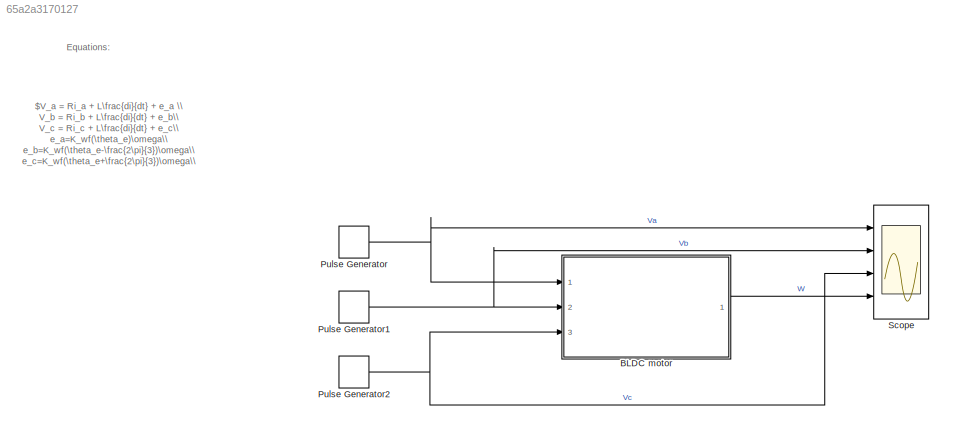
MODEL slx_65a2a3170127
KIND model
CONFIG AbsTol = auto
CONFIG EnableMultiTasking = off
CONFIG FixedStep = auto
CONFIG MaxStep = 0.01
CONFIG MinStep = auto
CONFIG RelTol = 1e-3
CONFIG SampleTimeConstraint = Unconstrained
CONFIG SolverName = ode45
CONFIG StartTime = 0.0
CONFIG StopTime = 50
WORKSPACE source: mxarray member
WORKSPACE B: Simulink.Parameter (value not decoded)
WORKSPACE J: Simulink.Parameter (value not decoded)
WORKSPACE Kw: Simulink.Parameter (value not decoded)
WORKSPACE L: Simulink.Parameter (value not decoded)
WORKSPACE P: Simulink.Parameter (value not decoded)
WORKSPACE R: Simulink.Parameter (value not decoded)
WORKSPACE Tl: Simulink.Parameter (value not decoded)
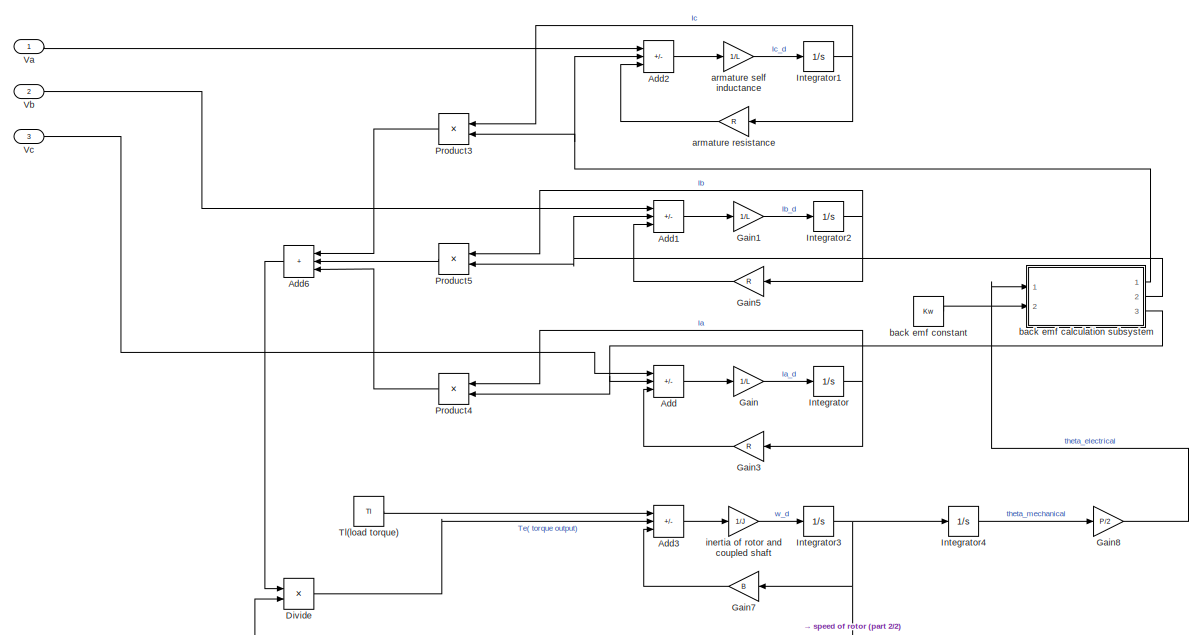
[diagram: BLDC motor - part 1/2, most of the canvas]
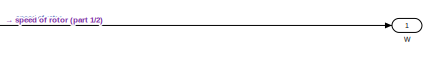
[diagram: BLDC motor - part 2/2, bottom right region]
BLOCK [SubSystem] BLDC motor
  Ports = [3, 1]
  RequestExecContextInheritance = off
BLOCK [Sum] BLDC motor/Add
  IconShape = rectangular
  Inputs = +--
  Ports = [3, 1]
BLOCK [Sum] BLDC motor/Add1
  IconShape = rectangular
  Inputs = +--
  Ports = [3, 1]
BLOCK [Sum] BLDC motor/Add2
  IconShape = rectangular
  Inputs = +--
  Ports = [3, 1]
BLOCK [Sum] BLDC motor/Add3
  IconShape = rectangular
  Inputs = -+-
  Ports = [3, 1]
BLOCK [Sum] BLDC motor/Add6
  IconShape = rectangular
  Inputs = +++
  NameLocation = top
  Ports = [3, 1]
BLOCK [Product] BLDC motor/Divide
  Inputs = */
  Ports = [2, 1]
BLOCK [Gain] BLDC motor/Gain
  Gain = 1/L
BLOCK [Gain] BLDC motor/Gain1
  Gain = 1/L
BLOCK [Gain] BLDC motor/Gain3
  Gain = R
  NameLocation = top
BLOCK [Gain] BLDC motor/Gain5
  Gain = R
  NameLocation = top
BLOCK [Gain] BLDC motor/Gain7
  Gain = B
  NameLocation = top
BLOCK [Gain] BLDC motor/Gain8
  Gain = P/2
BLOCK [Integrator] BLDC motor/Integrator
  Ports = [1, 1]
BLOCK [Integrator] BLDC motor/Integrator1
  Ports = [1, 1]
BLOCK [Integrator] BLDC motor/Integrator2
  Ports = [1, 1]
BLOCK [Integrator] BLDC motor/Integrator3
  InitialCondition = 1
  Ports = [1, 1]
BLOCK [Integrator] BLDC motor/Integrator4
  Ports = [1, 1]
BLOCK [Product] BLDC motor/Product3
  NameLocation = top
  Ports = [2, 1]
BLOCK [Product] BLDC motor/Product4
  NameLocation = top
  Ports = [2, 1]
BLOCK [Product] BLDC motor/Product5
  NameLocation = top
  Ports = [2, 1]
BLOCK [Constant] BLDC motor/Tl(load torque)
  Value = Tl
BLOCK [Inport] BLDC motor/Va
BLOCK [Inport] BLDC motor/Vb
  Port = 2
BLOCK [Inport] BLDC motor/Vc
  Port = 3
BLOCK [Gain] BLDC motor/armature resistance
  Gain = R
  NameLocation = top
BLOCK [Gain] BLDC motor/armature self inductance
  Gain = 1/L
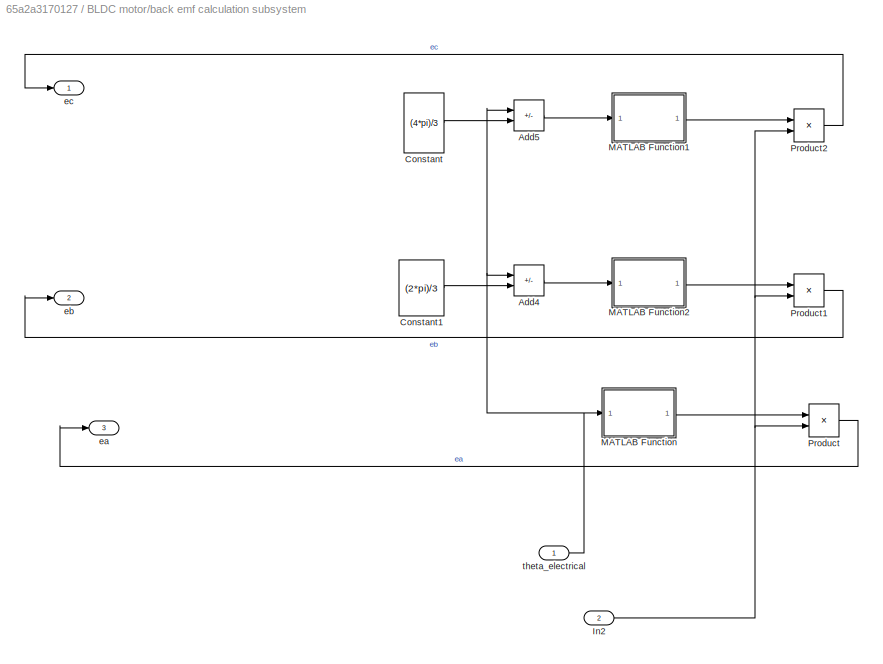
BLOCK [SubSystem] BLDC motor/back emf calculation subsystem
  Ports = [2, 3]
  RequestExecContextInheritance = off
BLOCK [Sum] BLDC motor/back emf calculation subsystem/Add4
  IconShape = rectangular
  Inputs = +-
  Ports = [2, 1]
BLOCK [Sum] BLDC motor/back emf calculation subsystem/Add5
  IconShape = rectangular
  Inputs = +-
  Ports = [2, 1]
BLOCK [Constant] BLDC motor/back emf calculation subsystem/Constant
  Value = (4*pi)/3
BLOCK [Constant] BLDC motor/back emf calculation subsystem/Constant1
  Value = (2*pi)/3
BLOCK [Inport] BLDC motor/back emf calculation subsystem/In2
  Port = 2
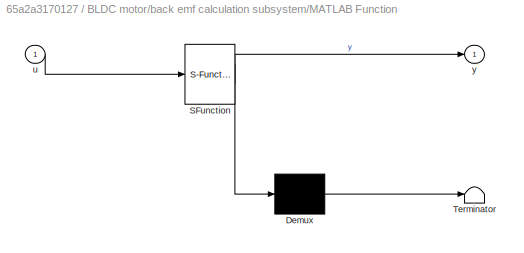
BLOCK [SubSystem] BLDC motor/back emf calculation subsystem/MATLAB Function
  ErrorFcn = Stateflow.Translate.translate
  PermitHierarchicalResolution = ExplicitOnly
  Ports = [1, 1]
  RequestExecContextInheritance = off
  SFBlockType = MATLAB Function
  TreatAsAtomicUnit = on
BLOCK [Demux] BLDC motor/back emf calculation subsystem/MATLAB Function/ Demux 
  Outputs = 1
  Ports = [1, 1]
BLOCK [S-Function] BLDC motor/back emf calculation subsystem/MATLAB Function/ SFunction 
  EnableBusSupport = off
  FunctionName = sf_sfun
  PortCounts = [1 2]
  Ports = [1, 2]
  SFcnIsStateOwnerBlock = off
  SFunctionDeploymentMode = off
  Tag = Stateflow S-Function 2
BLOCK [Terminator] BLDC motor/back emf calculation subsystem/MATLAB Function/ Terminator 
BLOCK [Inport] BLDC motor/back emf calculation subsystem/MATLAB Function/u
BLOCK [Outport] BLDC motor/back emf calculation subsystem/MATLAB Function/y
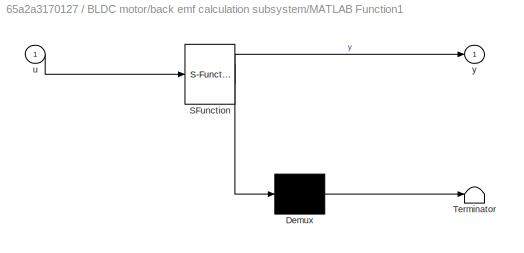
BLOCK [SubSystem] BLDC motor/back emf calculation subsystem/MATLAB Function1
  ErrorFcn = Stateflow.Translate.translate
  PermitHierarchicalResolution = ExplicitOnly
  Ports = [1, 1]
  RequestExecContextInheritance = off
  SFBlockType = MATLAB Function
  TreatAsAtomicUnit = on
BLOCK [Demux] BLDC motor/back emf calculation subsystem/MATLAB Function1/ Demux 
  Outputs = 1
  Ports = [1, 1]
BLOCK [S-Function] BLDC motor/back emf calculation subsystem/MATLAB Function1/ SFunction 
  EnableBusSupport = off
  FunctionName = sf_sfun
  PortCounts = [1 2]
  Ports = [1, 2]
  SFcnIsStateOwnerBlock = off
  SFunctionDeploymentMode = off
  Tag = Stateflow S-Function 1
BLOCK [Terminator] BLDC motor/back emf calculation subsystem/MATLAB Function1/ Terminator 
BLOCK [Inport] BLDC motor/back emf calculation subsystem/MATLAB Function1/u
BLOCK [Outport] BLDC motor/back emf calculation subsystem/MATLAB Function1/y
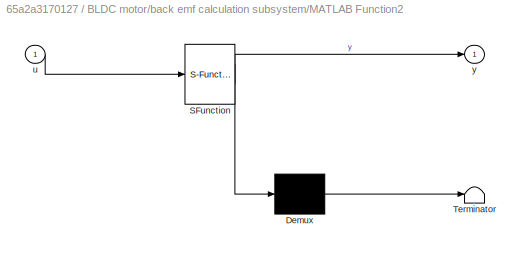
BLOCK [SubSystem] BLDC motor/back emf calculation subsystem/MATLAB Function2
  ErrorFcn = Stateflow.Translate.translate
  PermitHierarchicalResolution = ExplicitOnly
  Ports = [1, 1]
  RequestExecContextInheritance = off
  SFBlockType = MATLAB Function
  TreatAsAtomicUnit = on
BLOCK [Demux] BLDC motor/back emf calculation subsystem/MATLAB Function2/ Demux 
  Outputs = 1
  Ports = [1, 1]
BLOCK [S-Function] BLDC motor/back emf calculation subsystem/MATLAB Function2/ SFunction 
  EnableBusSupport = off
  FunctionName = sf_sfun
  PortCounts = [1 2]
  Ports = [1, 2]
  SFcnIsStateOwnerBlock = off
  SFunctionDeploymentMode = off
  Tag = Stateflow S-Function 3
BLOCK [Terminator] BLDC motor/back emf calculation subsystem/MATLAB Function2/ Terminator 
BLOCK [Inport] BLDC motor/back emf calculation subsystem/MATLAB Function2/u
BLOCK [Outport] BLDC motor/back emf calculation subsystem/MATLAB Function2/y
BLOCK [Product] BLDC motor/back emf calculation subsystem/Product
  Ports = [2, 1]
BLOCK [Product] BLDC motor/back emf calculation subsystem/Product1
  Ports = [2, 1]
BLOCK [Product] BLDC motor/back emf calculation subsystem/Product2
  Ports = [2, 1]
BLOCK [Outport] BLDC motor/back emf calculation subsystem/ea
  Port = 3
BLOCK [Outport] BLDC motor/back emf calculation subsystem/eb
  Port = 2
BLOCK [Outport] BLDC motor/back emf calculation subsystem/ec
BLOCK [Inport] BLDC motor/back emf calculation subsystem/theta_electrical
BLOCK [Constant] BLDC motor/back emf constant
  Value = Kw
BLOCK [Gain] BLDC motor/inertia of rotor and coupled shaft
  Gain = 1/J
BLOCK [Outport] BLDC motor/w
BLOCK [DiscretePulseGenerator] Pulse Generator
  Amplitude = 30
  Period = 10
  Ports = [0, 1]
  PulseType = Time based
  PulseWidth = 30
BLOCK [DiscretePulseGenerator] Pulse Generator1
  Amplitude = 30
  Period = 10
  PhaseDelay = 2.8
  Ports = [0, 1]
  PulseType = Time based
  PulseWidth = 30
BLOCK [DiscretePulseGenerator] Pulse Generator2
  Amplitude = 30
  Period = 10
  PhaseDelay = 5.8
  Ports = [0, 1]
  PulseType = Time based
  PulseWidth = 30
BLOCK [Scope] Scope
  Floating = off
  NumInputPorts = 4
  Ports = [4]
  ScopeSpecificationString = Simulink.scopes.TimeScopeBlockCfg('CurrentConfiguration', extmgr.ConfigurationSet(extmgr.Configuration('Core','General UI',true),extmgr.Configuration('Core','Source UI',true),extmgr.Configuration('Sources','WiredSimulink',true),extmgr.Configuration('Visuals','Time Domain',true,'SerializedDisplays',{struct('MinYLimReal','-3.75','MaxYLimReal','33.75','YLabelReal','','MinYLimMag','0.00000','MaxYLimMa...<+3413ch>
ANNOTATION (root): Equations:
ANNOTATION (root): $V_a = Ri_a + L\frac{di}{dt} + e_a \\ V_b = Ri_b + L\frac{di}{dt} + e_b\\ V_c = Ri_c + L\frac{di}{dt} + e_c\\ e_a=K_wf(\theta_e)\omega\\ e_b=K_wf(\theta_e-\frac{2\pi}{3})\omega\\ e_c=K_wf(\theta_e+\frac{2\pi}{3})\omega\\ \theta_e=\frac{P}{2}\theta_m\\ T_e=\frac{e_ai_b+e_bi_b+e_ci_c}{\omega}\\ T_e-T_l=J\frac{d\omega}{dt}+B\omega$
LINE BLDC motor/Add1:1 -> BLDC motor/Gain1:1
LINE BLDC motor/Add2:1 -> BLDC motor/armature self inductance:1
LINE BLDC motor/Add3:1 -> BLDC motor/inertia of rotor and coupled shaft:1
LINE BLDC motor/Add6:1 -> BLDC motor/Divide:1
LINE BLDC motor/Add:1 -> BLDC motor/Gain:1
LINE BLDC motor/Divide:1 -> BLDC motor/Add3:2
LINE BLDC motor/Gain1:1 -> BLDC motor/Integrator2:1
LINE BLDC motor/Gain3:1 -> BLDC motor/Add:3
LINE BLDC motor/Gain5:1 -> BLDC motor/Add1:3
LINE BLDC motor/Gain7:1 -> BLDC motor/Add3:3
LINE BLDC motor/Gain8:1 -> BLDC motor/back emf calculation subsystem:1
LINE BLDC motor/Gain:1 -> BLDC motor/Integrator:1
NET BLDC motor/Integrator1:1 -> BLDC motor/Product3:1, BLDC motor/armature resistance:1
NET BLDC motor/Integrator2:1 -> BLDC motor/Gain5:1, BLDC motor/Product5:1
NET BLDC motor/Integrator3:1 -> BLDC motor/Divide:2, BLDC motor/Gain7:1, BLDC motor/Integrator4:1, BLDC motor/w:1
LINE BLDC motor/Integrator4:1 -> BLDC motor/Gain8:1
NET BLDC motor/Integrator:1 -> BLDC motor/Gain3:1, BLDC motor/Product4:1
LINE BLDC motor/Product3:1 -> BLDC motor/Add6:1
LINE BLDC motor/Product4:1 -> BLDC motor/Add6:3
LINE BLDC motor/Product5:1 -> BLDC motor/Add6:2
LINE BLDC motor/Tl(load torque):1 -> BLDC motor/Add3:1
LINE BLDC motor/Va:1 -> BLDC motor/Add2:1
LINE BLDC motor/Vb:1 -> BLDC motor/Add1:1
LINE BLDC motor/Vc:1 -> BLDC motor/Add:1
LINE BLDC motor/armature resistance:1 -> BLDC motor/Add2:3
LINE BLDC motor/armature self inductance:1 -> BLDC motor/Integrator1:1
LINE BLDC motor/back emf calculation subsystem/Add4:1 -> BLDC motor/back emf calculation subsystem/MATLAB Function2:1
LINE BLDC motor/back emf calculation subsystem/Add5:1 -> BLDC motor/back emf calculation subsystem/MATLAB Function1:1
LINE BLDC motor/back emf calculation subsystem/Constant1:1 -> BLDC motor/back emf calculation subsystem/Add4:2
LINE BLDC motor/back emf calculation subsystem/Constant:1 -> BLDC motor/back emf calculation subsystem/Add5:2
NET BLDC motor/back emf calculation subsystem/In2:1 -> BLDC motor/back emf calculation subsystem/Product1:2, BLDC motor/back emf calculation subsystem/Product2:2, BLDC motor/back emf calculation subsystem/Product:2
LINE BLDC motor/back emf calculation subsystem/MATLAB Function1:1 -> BLDC motor/back emf calculation subsystem/Product2:1
LINE BLDC motor/back emf calculation subsystem/MATLAB Function2:1 -> BLDC motor/back emf calculation subsystem/Product1:1
LINE BLDC motor/back emf calculation subsystem/MATLAB Function:1 -> BLDC motor/back emf calculation subsystem/Product:1
LINE BLDC motor/back emf calculation subsystem/Product1:1 -> BLDC motor/back emf calculation subsystem/eb:1
LINE BLDC motor/back emf calculation subsystem/Product2:1 -> BLDC motor/back emf calculation subsystem/ec:1
LINE BLDC motor/back emf calculation subsystem/Product:1 -> BLDC motor/back emf calculation subsystem/ea:1
NET BLDC motor/back emf calculation subsystem/theta_electrical:1 -> BLDC motor/back emf calculation subsystem/Add4:1, BLDC motor/back emf calculation subsystem/Add5:1, BLDC motor/back emf calculation subsystem/MATLAB Function:1
NET BLDC motor/back emf calculation subsystem:1 -> BLDC motor/Add2:2, BLDC motor/Product3:2
NET BLDC motor/back emf calculation subsystem:2 -> BLDC motor/Add1:2, BLDC motor/Product5:2
NET BLDC motor/back emf calculation subsystem:3 -> BLDC motor/Add:2, BLDC motor/Product4:2
LINE BLDC motor/back emf constant:1 -> BLDC motor/back emf calculation subsystem:2
LINE BLDC motor/inertia of rotor and coupled shaft:1 -> BLDC motor/Integrator3:1
LINE BLDC motor:1 -> Scope:4
NET Pulse Generator1:1 -> BLDC motor:2, Scope:2
NET Pulse Generator2:1 -> BLDC motor:3, Scope:3
NET Pulse Generator:1 -> BLDC motor:1, Scope:1
note: NET lines group one-source signal fan-out (src -> all destinations, sorted); 1:1 wires keep LINE
CHART BLDC motor/back emf calculation subsystem/MATLAB Function states=1 transitions=1
  STATE_LABEL 'eML_blk_kernel()'
  STATE_LABEL 'SCRIPT:\nfunction y = fcn(u)\n\nif (u>=0 && u<((2*pi)/3))\n    y = 1;\nelseif(u>=((2*pi)/3) && u<pi)\n    y = 1-(6/pi*(u-((2*pi)/3)));\nelseif(u>=pi && u<((5*pi)/3))\n    y = -1;\nelse\n    y = -1+(6/pi*(u-((5*pi)/3)));\nend\nend\n\n'  <repeated x3 — deduplicated; at blocks: MATLAB Function, MATLAB Function2, MATLAB Function1>
CHART BLDC motor/back emf calculation subsystem/MATLAB Function2 states=1 transitions=1
  STATE_LABEL 'eML_blk_kernel()'
CHART BLDC motor/back emf calculation subsystem/MATLAB Function1 states=1 transitions=1
  STATE_LABEL 'eML_blk_kernel()'
CHART  states=0 transitions=0
CHART  states=0 transitions=0
CHART  states=0 transitions=0
